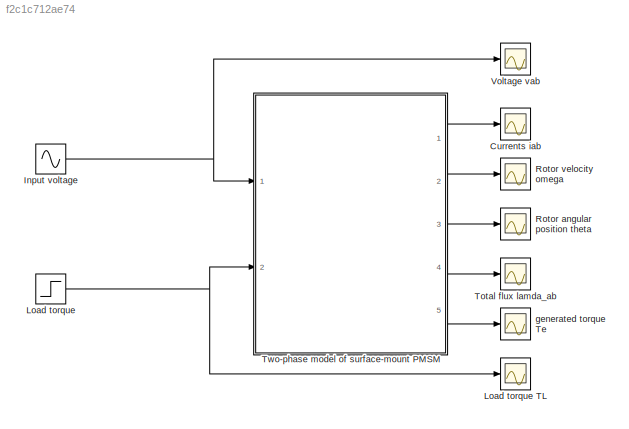
MODEL slx_f2c1c712ae74
KIND model
CONFIG AbsTol = 1e-6
CONFIG EnableMultiTasking = off
CONFIG FixedStep = auto
CONFIG MaxStep = auto
CONFIG MinStep = auto
CONFIG RelTol = 1e-6
CONFIG SampleTimeConstraint = Unconstrained
CONFIG SolverName = ode45
CONFIG StartTime = 0.0
CONFIG StopTime = 1
BLOCK [Scope] Currents iab
  Floating = off
  NumInputPorts = 1
  Ports = [1]
  ScopeSpecificationString = Simulink.scopes.TimeScopeBlockCfg('CurrentConfiguration', extmgr.ConfigurationSet(extmgr.Configuration('Core','General UI',true),extmgr.Configuration('Core','Source UI',true),extmgr.Configuration('Sources','WiredSimulink',true),extmgr.Configuration('Visuals','Time Domain',true,'SerializedDisplays',{struct('MinYLimReal','15.47238','MaxYLimReal','20.13951','YLabelReal','','MinYLimMag','15.47238','Ma...<+1485ch>
BLOCK [Sin] Input voltage
  Amplitude = A
  Frequency = W
  Phase = [pi/2;0]
  Ports = [0, 1]
  SampleTime = 0
BLOCK [Step] Load torque
  After = TL1
  SampleTime = 0
  Time = 0.5
BLOCK [Scope] Load torque TL
  Floating = off
  NumInputPorts = 1
  Ports = [1]
  ScopeSpecificationString = Simulink.scopes.TimeScopeBlockCfg('CurrentConfiguration', extmgr.ConfigurationSet(extmgr.Configuration('Core','General UI',true),extmgr.Configuration('Core','Source UI',true),extmgr.Configuration('Sources','WiredSimulink',true,'DataLoggingVariableName','ScopeData2'),extmgr.Configuration('Visuals','Time Domain',true,'SerializedDisplays',{struct('MinYLimReal','15.47238','MaxYLimReal','20.13951','YLa...<+1468ch>
BLOCK [Scope] Rotor angular position theta
  Floating = off
  NumInputPorts = 1
  Ports = [1]
  ScopeSpecificationString = Simulink.scopes.TimeScopeBlockCfg('CurrentConfiguration', extmgr.ConfigurationSet(extmgr.Configuration('Core','General UI',true),extmgr.Configuration('Core','Source UI',true),extmgr.Configuration('Sources','WiredSimulink',true,'DataLoggingVariableName','ScopeData2'),extmgr.Configuration('Visuals','Time Domain',true,'SerializedDisplays',{struct('MinYLimReal','-1.83723','MaxYLimReal','16.53507','YLa...<+1715ch>
BLOCK [Scope] Rotor velocity omega 
  Floating = off
  NumInputPorts = 1
  Ports = [1]
  ScopeSpecificationString = Simulink.scopes.TimeScopeBlockCfg('CurrentConfiguration', extmgr.ConfigurationSet(extmgr.Configuration('Core','General UI',true),extmgr.Configuration('Core','Source UI',true),extmgr.Configuration('Sources','WiredSimulink',true,'DataLoggingVariableName','ScopeData1'),extmgr.Configuration('Visuals','Time Domain',true,'SerializedDisplays',{struct('MinYLimReal','-38.0275','MaxYLimReal','67.35734','YLa...<+1775ch>
BLOCK [Scope] Total flux lamda_ab
  Floating = off
  NumInputPorts = 1
  Ports = [1]
  ScopeSpecificationString = Simulink.scopes.TimeScopeBlockCfg('CurrentConfiguration', extmgr.ConfigurationSet(extmgr.Configuration('Core','General UI',true),extmgr.Configuration('Core','Source UI',true),extmgr.Configuration('Sources','WiredSimulink',true,'DataLoggingVariableName','ScopeData3'),extmgr.Configuration('Visuals','Time Domain',true,'SerializedDisplays',{struct('MinYLimReal','-1.11462','MaxYLimReal','1.12077','YLab...<+1859ch>
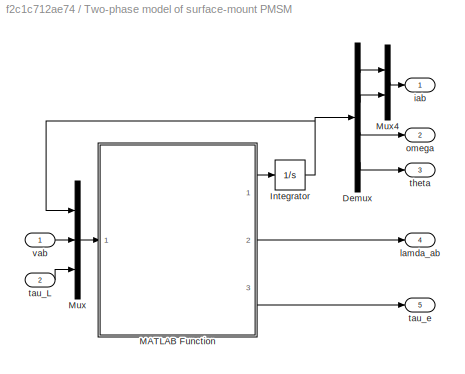
BLOCK [SubSystem] Two-phase model of surface-mount PMSM
  Ports = [2, 5]
  RequestExecContextInheritance = off
BLOCK [Demux] Two-phase model of surface-mount PMSM/Demux
  Ports = [1, 4]
BLOCK [Integrator] Two-phase model of surface-mount PMSM/Integrator
  InitialCondition = [iab_0;omega_0;theta_0]
  Ports = [1, 1]
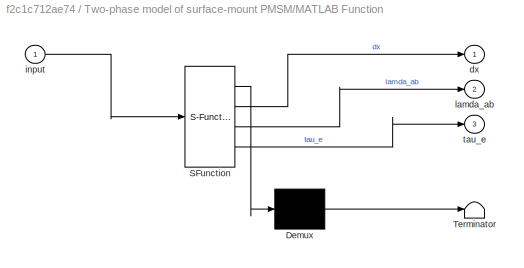
BLOCK [SubSystem] Two-phase model of surface-mount PMSM/MATLAB  Function
  ErrorFcn = Stateflow.Translate.translate
  PermitHierarchicalResolution = ExplicitOnly
  Ports = [1, 3]
  RequestExecContextInheritance = off
  SFBlockType = MATLAB Function
  TreatAsAtomicUnit = on
BLOCK [Demux] Two-phase model of surface-mount PMSM/MATLAB  Function/ Demux 
  Outputs = 1
  Ports = [1, 1]
BLOCK [S-Function] Two-phase model of surface-mount PMSM/MATLAB  Function/ SFunction 
  EnableBusSupport = on
  FunctionName = sf_sfun
  Parameters = B,Jm,L,R,lamda_m,np
  PortCounts = [1 4]
  Ports = [1, 4]
  SFcnIsStateOwnerBlock = off
  SFunctionDeploymentMode = off
  Tag = Stateflow S-Function 2
BLOCK [Terminator] Two-phase model of surface-mount PMSM/MATLAB  Function/ Terminator 
BLOCK [Outport] Two-phase model of surface-mount PMSM/MATLAB  Function/dx
  VectorParamsAs1DForOutWhenUnconnected = off
BLOCK [Inport] Two-phase model of surface-mount PMSM/MATLAB  Function/input
BLOCK [Outport] Two-phase model of surface-mount PMSM/MATLAB  Function/lamda_ab
  Port = 2
BLOCK [Outport] Two-phase model of surface-mount PMSM/MATLAB  Function/tau_e
  Port = 3
BLOCK [Mux] Two-phase model of surface-mount PMSM/Mux
  DisplayOption = bar
  Inputs = 3
  Ports = [3, 1]
BLOCK [Mux] Two-phase model of surface-mount PMSM/Mux4
  DisplayOption = bar
  Inputs = 2
  Ports = [2, 1]
BLOCK [Outport] Two-phase model of surface-mount PMSM/iab
BLOCK [Outport] Two-phase model of surface-mount PMSM/lamda_ab
  Port = 4
BLOCK [Outport] Two-phase model of surface-mount PMSM/omega
  Port = 2
BLOCK [Inport] Two-phase model of surface-mount PMSM/tau_L
  Port = 2
BLOCK [Outport] Two-phase model of surface-mount PMSM/tau_e
  Port = 5
BLOCK [Outport] Two-phase model of surface-mount PMSM/theta
  Port = 3
BLOCK [Inport] Two-phase model of surface-mount PMSM/vab
BLOCK [Scope] Voltage vab
  Floating = off
  NumInputPorts = 1
  Ports = [1]
  ScopeSpecificationString = Simulink.scopes.TimeScopeBlockCfg('CurrentConfiguration', extmgr.ConfigurationSet(extmgr.Configuration('Core','General UI',true),extmgr.Configuration('Core','Source UI',true),extmgr.Configuration('Sources','WiredSimulink',true,'DataLoggingVariableName','ScopeData1'),extmgr.Configuration('Visuals','Time Domain',true,'SerializedDisplays',{struct('MinYLimReal','-169.99984','MaxYLimReal','169.99998','...<+1480ch>
BLOCK [Scope] generated torque Te
  Floating = off
  NumInputPorts = 1
  Ports = [1]
  ScopeSpecificationString = Simulink.scopes.TimeScopeBlockCfg('CurrentConfiguration', extmgr.ConfigurationSet(extmgr.Configuration('Core','General UI',true),extmgr.Configuration('Core','Source UI',true),extmgr.Configuration('Sources','WiredSimulink',true,'DataLoggingVariableName','ScopeData1'),extmgr.Configuration('Visuals','Time Domain',true,'SerializedDisplays',{struct('MinYLimReal','-4.43362','MaxYLimReal','30.93868','YLa...<+1477ch>
NET Input voltage:1 -> Two-phase model of surface-mount PMSM:1, Voltage vab:1
NET Load torque:1 -> Load torque TL:1, Two-phase model of surface-mount PMSM:2
LINE Two-phase model of surface-mount PMSM/Demux:1 -> Two-phase model of surface-mount PMSM/Mux4:1
LINE Two-phase model of surface-mount PMSM/Demux:2 -> Two-phase model of surface-mount PMSM/Mux4:2
LINE Two-phase model of surface-mount PMSM/Demux:3 -> Two-phase model of surface-mount PMSM/omega:1
LINE Two-phase model of surface-mount PMSM/Demux:4 -> Two-phase model of surface-mount PMSM/theta:1
NET Two-phase model of surface-mount PMSM/Integrator:1 -> Two-phase model of surface-mount PMSM/Demux:1, Two-phase model of surface-mount PMSM/Mux:1
LINE Two-phase model of surface-mount PMSM/MATLAB  Function:1 -> Two-phase model of surface-mount PMSM/Integrator:1
LINE Two-phase model of surface-mount PMSM/MATLAB  Function:2 -> Two-phase model of surface-mount PMSM/lamda_ab:1
LINE Two-phase model of surface-mount PMSM/MATLAB  Function:3 -> Two-phase model of surface-mount PMSM/tau_e:1
LINE Two-phase model of surface-mount PMSM/Mux4:1 -> Two-phase model of surface-mount PMSM/iab:1
LINE Two-phase model of surface-mount PMSM/Mux:1 -> Two-phase model of surface-mount PMSM/MATLAB  Function:1
LINE Two-phase model of surface-mount PMSM/tau_L:1 -> Two-phase model of surface-mount PMSM/Mux:3
LINE Two-phase model of surface-mount PMSM/vab:1 -> Two-phase model of surface-mount PMSM/Mux:2
LINE Two-phase model of surface-mount PMSM:1 -> Currents iab:1
LINE Two-phase model of surface-mount PMSM:2 -> Rotor velocity omega :1
LINE Two-phase model of surface-mount PMSM:3 -> Rotor angular position theta:1
LINE Two-phase model of surface-mount PMSM:4 -> Total flux lamda_ab:1
LINE Two-phase model of surface-mount PMSM:5 -> generated torque Te:1
note: NET lines group one-source signal fan-out (src -> all destinations, sorted); 1:1 wires keep LINE
CHART Two-phase model of surface-mount PMSM/MATLAB  Function states=1 transitions=1
  STATE_LABEL 'eML_blk_kernel()'
  STATE_LABEL "SCRIPT:\nfunction [dx,lamda_ab,tau_e]  = fcn(input,R, L, lamda_m, np, Jm, B)\nia=input(1);\nib=input(2);\niab=[ia;ib];\nomega=input(3);\ntheta=input(4);\nva=input(5);\nvb=input(6);\nvab=[va;vb];\ntau_L=input(7);\n\n%%%%%%%\nC=[cos(np*theta);sin(np*theta)];\nJ=[0 -1;1 0];\ndC=np*J*C;\n%%%%%%%\ndot_iab=(1/L)*(-R*iab-omega*lamda_m*dC+vab);\ndot_omega=(1/Jm)*(-B*omega+lamda_m*iab'*dC-tau_L);\ndot_theta=omega;\nlamda_ab=L...<+89ch>"
CHART  states=0 transitions=0
